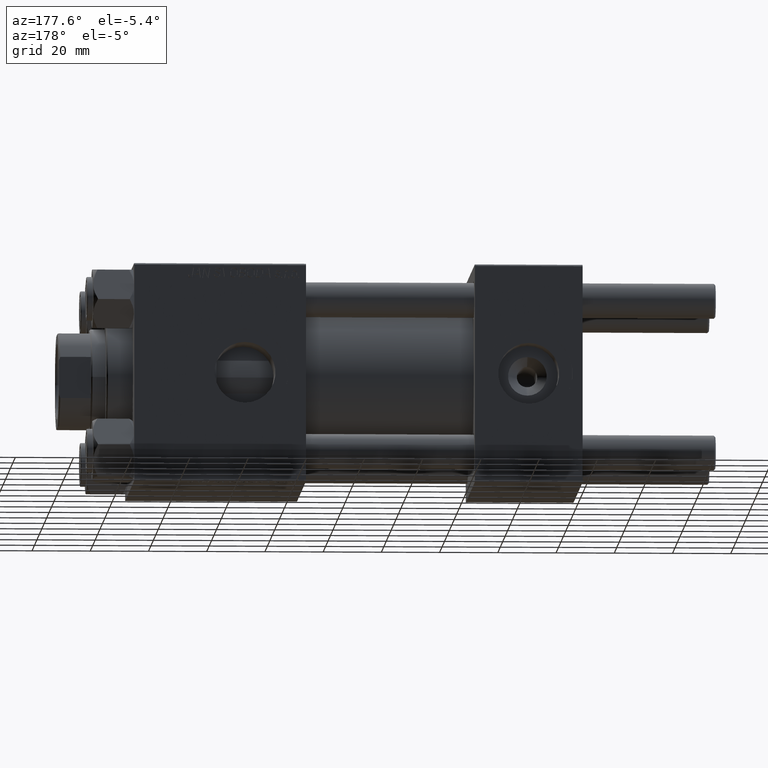
[diagram: clean part render]
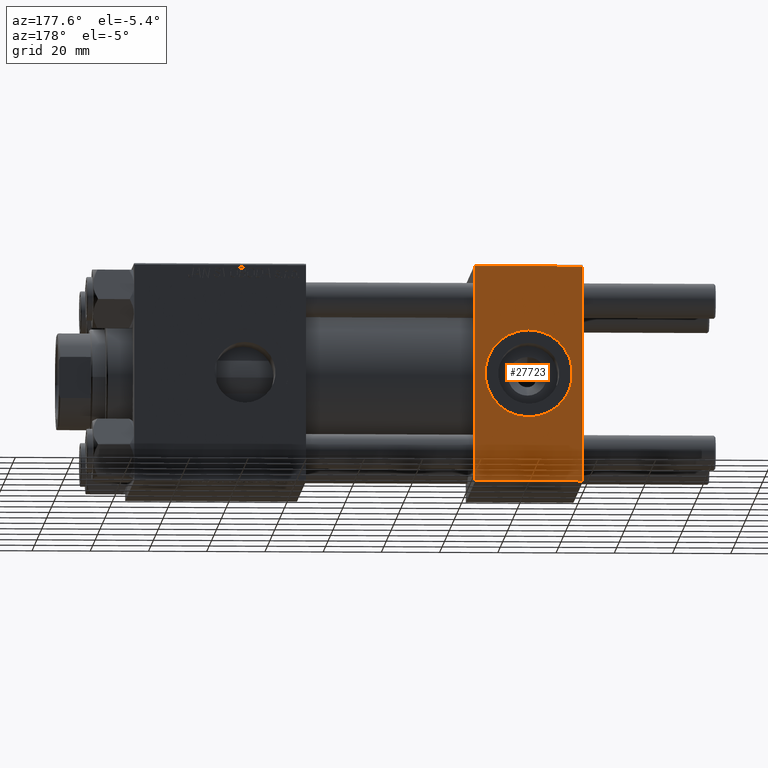
[diagram: same view with one face highlighted and labeled with its STEP entity id]
A machine part, auxiliary view. The second image highlights one B-rep face of the part: STEP entity #27723.
In plain terms, the highlighted planar face has unit normal (0, 1, 0).
Its self-contained STEP definition (entity closure, byte-faithful):
#229 = CARTESIAN_POINT ( 'NONE',  ( 18.50000000000000000, 37.49999999999999289, 0.000000000000000000 ) ) ;
#888 = EDGE_CURVE ( 'NONE', #6379, #31117, #20719, .T. ) ;
#936 = LINE ( 'NONE', #45455, #18128 ) ;
#1966 = DIRECTION ( 'NONE',  ( -1.000000000000000000, 0.000000000000000000, 0.000000000000000000 ) ) ;
#3400 = DIRECTION ( 'NONE',  ( 0.000000000000000000, 1.000000000000000000, 0.000000000000000000 ) ) ;
#3524 = CARTESIAN_POINT ( 'NONE',  ( 37.00000000000000000, 37.49999999999999289, 37.50000000000000000 ) ) ;
#3928 = DIRECTION ( 'NONE',  ( 0.000000000000000000, 0.000000000000000000, 1.000000000000000000 ) ) ;
#5284 = EDGE_LOOP ( 'NONE', ( #9713, #15659 ) ) ;
#6158 = VERTEX_POINT ( 'NONE', #15349 ) ;
#6217 = VECTOR ( 'NONE', #14091, 1000.000000000000000 ) ;
#6379 = VERTEX_POINT ( 'NONE', #15994 ) ;
#6411 = CIRCLE ( 'NONE', #19772, 15.00000000000000178 ) ;
#7465 = DIRECTION ( 'NONE',  ( -0.000000000000000000, 1.000000000000000000, 0.000000000000000000 ) ) ;
#7694 = DIRECTION ( 'NONE',  ( 0.000000000000000000, 1.000000000000000000, 0.000000000000000000 ) ) ;
#9713 = ORIENTED_EDGE ( 'NONE', *, *, #40404, .F. ) ;
#10801 = EDGE_CURVE ( 'NONE', #6158, #38187, #12106, .T. ) ;
#11121 = FACE_BOUND ( 'NONE', #5284, .T. ) ;
#12106 = CIRCLE ( 'NONE', #33034, 15.00000000000000178 ) ;
#12874 = CARTESIAN_POINT ( 'NONE',  ( 0.000000000000000000, 37.49999999999999289, 37.50000000000000000 ) ) ;
#14091 = DIRECTION ( 'NONE',  ( 0.000000000000000000, 0.000000000000000000, -1.000000000000000000 ) ) ;
#14487 = ORIENTED_EDGE ( 'NONE', *, *, #18820, .T. ) ;
#15349 = CARTESIAN_POINT ( 'NONE',  ( 18.50000000000000355, 37.49999999999999289, -15.00000000000000178 ) ) ;
#15659 = ORIENTED_EDGE ( 'NONE', *, *, #10801, .F. ) ;
#15829 = PLANE ( 'NONE',  #46254 ) ;
#15994 = CARTESIAN_POINT ( 'NONE',  ( 0.000000000000000000, 37.49999999999999289, 37.00000000000000000 ) ) ;
#16333 = ORIENTED_EDGE ( 'NONE', *, *, #34628, .T. ) ;
#17537 = ORIENTED_EDGE ( 'NONE', *, *, #41286, .T. ) ;
#17695 = VECTOR ( 'NONE', #24912, 1000.000000000000000 ) ;
#18128 = VECTOR ( 'NONE', #41513, 1000.000000000000000 ) ;
#18820 = EDGE_CURVE ( 'NONE', #47833, #31117, #21618, .T. ) ;
#19033 = CARTESIAN_POINT ( 'NONE',  ( 37.00000000000000000, 37.49999999999999289, -36.99999999999998579 ) ) ;
#19772 = AXIS2_PLACEMENT_3D ( 'NONE', #47498, #7694, #27843 ) ;
#20719 = LINE ( 'NONE', #12874, #17695 ) ;
#21431 = VECTOR ( 'NONE', #1966, 1000.000000000000000 ) ;
#21618 = LINE ( 'NONE', #41774, #21431 ) ;
#24701 = ORIENTED_EDGE ( 'NONE', *, *, #888, .F. ) ;
#24912 = DIRECTION ( 'NONE',  ( 0.000000000000000000, 0.000000000000000000, -1.000000000000000000 ) ) ;
#27108 = CARTESIAN_POINT ( 'NONE',  ( 37.00000000000000000, 37.49999999999999289, 37.50000000000000000 ) ) ;
#27574 = EDGE_LOOP ( 'NONE', ( #16333, #14487, #24701, #17537 ) ) ;
#27607 = FACE_OUTER_BOUND ( 'NONE', #27574, .T. ) ;
#27723 = ADVANCED_FACE ( 'NONE', ( #11121, #27607 ), #15829, .T. ) ;
#27843 = DIRECTION ( 'NONE',  ( 0.000000000000000000, 0.000000000000000000, 1.000000000000000000 ) ) ;
#29287 = VERTEX_POINT ( 'NONE', #39561 ) ;
#31117 = VERTEX_POINT ( 'NONE', #44385 ) ;
#31791 = DIRECTION ( 'NONE',  ( 0.000000000000000000, -0.000000000000000000, 1.000000000000000000 ) ) ;
#33034 = AXIS2_PLACEMENT_3D ( 'NONE', #229, #3400, #3928 ) ;
#34628 = EDGE_CURVE ( 'NONE', #29287, #47833, #43589, .T. ) ;
#38187 = VERTEX_POINT ( 'NONE', #38425 ) ;
#38425 = CARTESIAN_POINT ( 'NONE',  ( 18.50000000000000000, 37.49999999999999289, 15.00000000000000178 ) ) ;
#39561 = CARTESIAN_POINT ( 'NONE',  ( 37.00000000000000000, 37.49999999999999289, 37.00000000000000000 ) ) ;
#40404 = EDGE_CURVE ( 'NONE', #38187, #6158, #6411, .T. ) ;
#41286 = EDGE_CURVE ( 'NONE', #6379, #29287, #936, .T. ) ;
#41513 = DIRECTION ( 'NONE',  ( 1.000000000000000000, 0.000000000000000000, 0.000000000000000000 ) ) ;
#41774 = CARTESIAN_POINT ( 'NONE',  ( 37.00000000000000000, 37.49999999999999289, -36.99999999999998579 ) ) ;
#43589 = LINE ( 'NONE', #27108, #6217 ) ;
#44385 = CARTESIAN_POINT ( 'NONE',  ( 0.000000000000000000, 37.49999999999999289, -36.99999999999998579 ) ) ;
#45455 = CARTESIAN_POINT ( 'NONE',  ( 37.00000000000000000, 37.49999999999999289, 37.00000000000000000 ) ) ;
#46254 = AXIS2_PLACEMENT_3D ( 'NONE', #3524, #7465, #31791 ) ;
#47498 = CARTESIAN_POINT ( 'NONE',  ( 18.50000000000000000, 37.49999999999999289, 0.000000000000000000 ) ) ;
#47833 = VERTEX_POINT ( 'NONE', #19033 ) ;